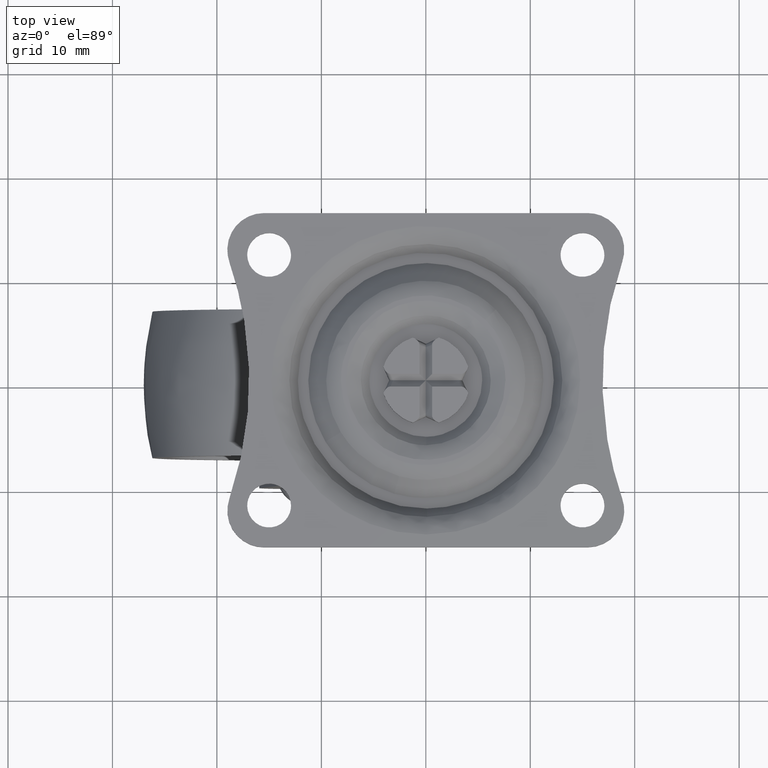
[diagram: clean part render]
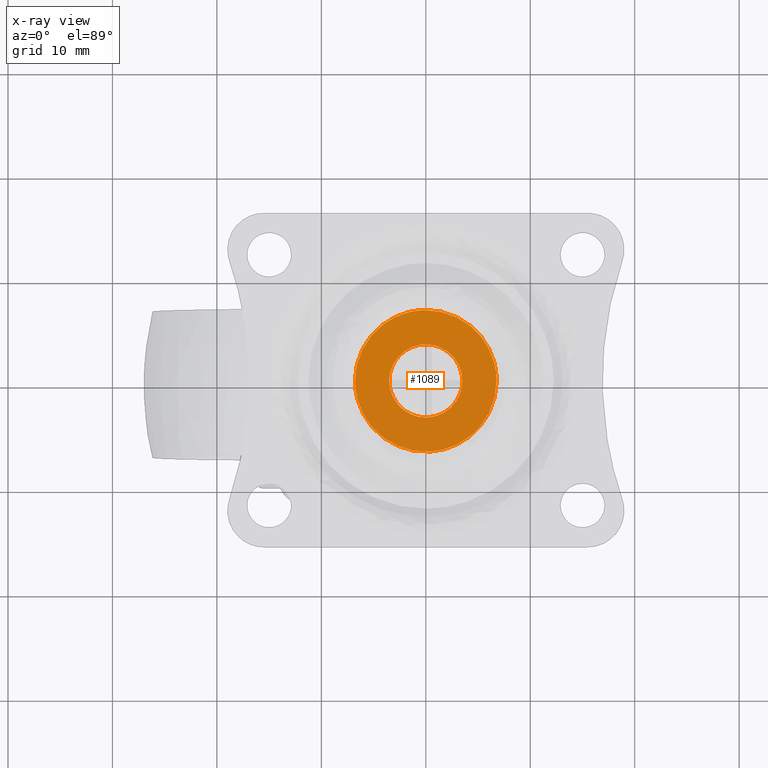
[diagram: x-ray — body ghosted, one internal face saturated and labeled with its STEP entity id]
A machine part, top view, then the same camera in x-ray: the body is ghosted and one INTERNAL B-rep face — a face not visible from any outside direction — is saturated and labeled: STEP entity #1089.
In plain terms, the highlighted face is a freeform B-spline surface patch.
Its self-contained STEP definition (entity closure, byte-faithful):
#85=CARTESIAN_POINT('',(-0.413124672171360,-3.475522380717731,-4.400000000000182));
#86=VERTEX_POINT('',#85);
#92=CARTESIAN_POINT('',(3.499989000004121,0.000005499999830,-4.400000000000181));
#93=VERTEX_POINT('',#92);
#94=CARTESIAN_POINT('',(-0.413124672171360,-3.475522380717731,-4.400000000000182));
#95=CARTESIAN_POINT('',(-0.207289593110407,-3.499989000004490,-4.400000000000181));
#96=CARTESIAN_POINT('',(-0.000005500000199,-3.499989000004490,-4.400000000000181));
#97=CARTESIAN_POINT('',(3.499989000004119,-3.499989000004490,-4.400000000000182));
#98=CARTESIAN_POINT('',(3.499989000004121,0.000005499999830,-4.400000000000181));
#106=(BOUNDED_CURVE()B_SPLINE_CURVE(2,(#94,#95,#96,#97,#98),.UNSPECIFIED.,.F.,.U.)B_SPLINE_CURVE_WITH_KNOTS((3,2,3),(0.229562473509781,0.250000000000000,0.500000000000000),.UNSPECIFIED.)CURVE()GEOMETRIC_REPRESENTATION_ITEM()RATIONAL_B_SPLINE_CURVE((0.956026754176394,0.976055948326778,1.0,0.707106781186547,1.0))REPRESENTATION_ITEM(''));
#107=EDGE_CURVE('',#86,#93,#106,.T.);
#109=CARTESIAN_POINT('',(0.213664052684950,3.493471804734400,-4.400000000000181));
#110=VERTEX_POINT('',#109);
#111=CARTESIAN_POINT('',(3.499989000004121,0.000005499999830,-4.400000000000181));
#112=CARTESIAN_POINT('',(3.499989000004121,3.292471560139656,-4.400000000000182));
#113=CARTESIAN_POINT('',(0.213664052684950,3.493471804734400,-4.400000000000181));
#121=(BOUNDED_CURVE()B_SPLINE_CURVE(2,(#111,#112,#113),.UNSPECIFIED.,.F.,.U.)B_SPLINE_CURVE_WITH_KNOTS((3,3),(0.500000000000000,0.739332962234080),.UNSPECIFIED.)CURVE()GEOMETRIC_REPRESENTATION_ITEM()RATIONAL_B_SPLINE_CURVE((1.0,0.719603993292407,0.976072041656296))REPRESENTATION_ITEM(''));
#122=EDGE_CURVE('',#93,#110,#121,.T.);
#196=CARTESIAN_POINT('',(-3.500000000004519,0.000005499999830,-4.400000000000181));
#197=VERTEX_POINT('',#196);
#198=CARTESIAN_POINT('',(0.213664052684950,3.493471804734400,-4.400000000000181));
#199=CARTESIAN_POINT('',(0.106929003584873,3.500000000004150,-4.400000000000181));
#200=CARTESIAN_POINT('',(-0.000005500000199,3.500000000004150,-4.400000000000181));
#201=CARTESIAN_POINT('',(-3.500000000004520,3.500000000004149,-4.400000000000182));
#202=CARTESIAN_POINT('',(-3.500000000004519,0.000005499999830,-4.400000000000181));
#210=(BOUNDED_CURVE()B_SPLINE_CURVE(2,(#198,#199,#200,#201,#202),.UNSPECIFIED.,.F.,.U.)B_SPLINE_CURVE_WITH_KNOTS((3,2,3),(0.739332962234080,0.750000000000000,1.0),.UNSPECIFIED.)CURVE()GEOMETRIC_REPRESENTATION_ITEM()RATIONAL_B_SPLINE_CURVE((0.976072041656296,0.987502787894140,1.0,0.707106781186547,1.0))REPRESENTATION_ITEM(''));
#211=EDGE_CURVE('',#110,#197,#210,.T.);
#213=CARTESIAN_POINT('',(-3.500000000004519,0.000005499999830,-4.400000000000181));
#214=CARTESIAN_POINT('',(-3.500000000004519,-3.108600455765298,-4.400000000000181));
#215=CARTESIAN_POINT('',(-0.413124672171360,-3.475522380717732,-4.400000000000182));
#223=(BOUNDED_CURVE()B_SPLINE_CURVE(2,(#213,#214,#215),.UNSPECIFIED.,.F.,.U.)B_SPLINE_CURVE_WITH_KNOTS((3,3),(0.0,0.229562473509781),.UNSPECIFIED.)CURVE()GEOMETRIC_REPRESENTATION_ITEM()RATIONAL_B_SPLINE_CURVE((1.0,0.731050832859769,0.956026754176394))REPRESENTATION_ITEM(''));
#224=EDGE_CURVE('',#197,#86,#223,.T.);
#855=CARTESIAN_POINT('',(0.472788007585100,-6.763446083968493,-4.400000000242740));
#856=VERTEX_POINT('',#855);
#857=CARTESIAN_POINT('',(-6.779950695194750,0.0,-4.400000000000090));
#858=VERTEX_POINT('',#857);
#859=CARTESIAN_POINT('',(0.472788007585100,-6.763446083968493,-4.400000000242740));
#860=CARTESIAN_POINT('',(0.236682084523474,-6.779950695194750,-4.400000000000090));
#861=CARTESIAN_POINT('',(0.0,-6.779950695194750,-4.400000000000090));
#862=CARTESIAN_POINT('',(-6.779950695194750,-6.779950695194750,-4.400000000000091));
#863=CARTESIAN_POINT('',(-6.779950695194750,0.0,-4.400000000000090));
#871=(BOUNDED_CURVE()B_SPLINE_CURVE(2,(#859,#860,#861,#862,#863),.UNSPECIFIED.,.F.,.U.)B_SPLINE_CURVE_WITH_KNOTS((3,2,3),(0.737833686531076,0.750000000000000,1.0),.UNSPECIFIED.)CURVE()GEOMETRIC_REPRESENTATION_ITEM()RATIONAL_B_SPLINE_CURVE((0.972879876378483,0.985746277147974,1.0,0.707106781186547,1.0))REPRESENTATION_ITEM(''));
#872=EDGE_CURVE('',#856,#858,#871,.T.);
#874=CARTESIAN_POINT('',(-0.085197130920040,6.779415378890160,-4.400000000209905));
#875=VERTEX_POINT('',#874);
#876=CARTESIAN_POINT('',(-6.779950695194750,0.0,-4.400000000000090));
#877=CARTESIAN_POINT('',(-6.779950695194750,6.695282195538506,-4.400000000000091));
#878=CARTESIAN_POINT('',(-0.085197130920040,6.779415378890160,-4.400000000209905));
#886=(BOUNDED_CURVE()B_SPLINE_CURVE(2,(#876,#877,#878),.UNSPECIFIED.,.F.,.U.)B_SPLINE_CURVE_WITH_KNOTS((3,3),(0.0,0.247784295917796),.UNSPECIFIED.)CURVE()GEOMETRIC_REPRESENTATION_ITEM()RATIONAL_B_SPLINE_CURVE((1.0,0.709702639988846,0.994854295634963))REPRESENTATION_ITEM(''));
#887=EDGE_CURVE('',#858,#875,#886,.T.);
#989=CARTESIAN_POINT('',(6.779950695194750,0.0,-4.400000000000090));
#990=VERTEX_POINT('',#989);
#991=CARTESIAN_POINT('',(6.779950695194750,0.0,-4.400000000000090));
#992=CARTESIAN_POINT('',(6.779950695194749,-6.322553845770509,-4.400000000000091));
#993=CARTESIAN_POINT('',(0.472788007585100,-6.763446083968493,-4.400000000242740));
#1001=(BOUNDED_CURVE()B_SPLINE_CURVE(2,(#991,#992,#993),.UNSPECIFIED.,.F.,.U.)B_SPLINE_CURVE_WITH_KNOTS((3,3),(0.500000000000000,0.737833686531077),.UNSPECIFIED.)CURVE()GEOMETRIC_REPRESENTATION_ITEM()RATIONAL_B_SPLINE_CURVE((1.0,0.721360504038573,0.972879876378485))REPRESENTATION_ITEM(''));
#1002=EDGE_CURVE('',#990,#856,#1001,.T.);
#1036=CARTESIAN_POINT('',(-0.085197130920040,6.779415378890160,-4.400000000209905));
#1037=CARTESIAN_POINT('',(-0.042600247265499,6.779950695194750,-4.400000000000090));
#1038=CARTESIAN_POINT('',(0.0,6.779950695194750,-4.400000000000090));
#1039=CARTESIAN_POINT('',(6.779950695194750,6.779950695194750,-4.400000000000091));
#1040=CARTESIAN_POINT('',(6.779950695194750,0.0,-4.400000000000090));
#1048=(BOUNDED_CURVE()B_SPLINE_CURVE(2,(#1036,#1037,#1038,#1039,#1040),.UNSPECIFIED.,.F.,.U.)B_SPLINE_CURVE_WITH_KNOTS((3,2,3),(0.247784295917796,0.250000000000000,0.500000000000000),.UNSPECIFIED.)CURVE()GEOMETRIC_REPRESENTATION_ITEM()RATIONAL_B_SPLINE_CURVE((0.994854295634963,0.997404141197701,1.0,0.707106781186547,1.0))REPRESENTATION_ITEM(''));
#1049=EDGE_CURVE('',#875,#990,#1048,.T.);
#1072=CARTESIAN_POINT('',(-7.457267743362987,-7.456428961557897,-4.400000000000090));
#1073=CARTESIAN_POINT('',(7.457268107067884,-7.456428961557897,-4.400000000000090));
#1074=CARTESIAN_POINT('',(-7.457267743362987,7.456667419814269,-4.400000000000090));
#1075=CARTESIAN_POINT('',(7.457268107067884,7.456667419814269,-4.400000000000090));
#1076=B_SPLINE_SURFACE_WITH_KNOTS('',1,1,((#1072,#1074),(#1073,#1075)),.UNSPECIFIED.,.F.,.F.,.U.,(2,2),(2,2),(0.0,14.914535850430870),(0.0,14.913096381372171),.UNSPECIFIED.);
#1077=ORIENTED_EDGE('',*,*,#872,.F.);
#1078=ORIENTED_EDGE('',*,*,#1002,.F.);
#1079=ORIENTED_EDGE('',*,*,#1049,.F.);
#1080=ORIENTED_EDGE('',*,*,#887,.F.);
#1081=EDGE_LOOP('',(#1077,#1078,#1079,#1080));
#1082=FACE_OUTER_BOUND('',#1081,.T.);
#1083=ORIENTED_EDGE('',*,*,#122,.F.);
#1084=ORIENTED_EDGE('',*,*,#107,.F.);
#1085=ORIENTED_EDGE('',*,*,#224,.F.);
#1086=ORIENTED_EDGE('',*,*,#211,.F.);
#1087=EDGE_LOOP('',(#1083,#1084,#1085,#1086));
#1088=FACE_BOUND('',#1087,.T.);
#1089=ADVANCED_FACE('',(#1082,#1088),#1076,.T.);